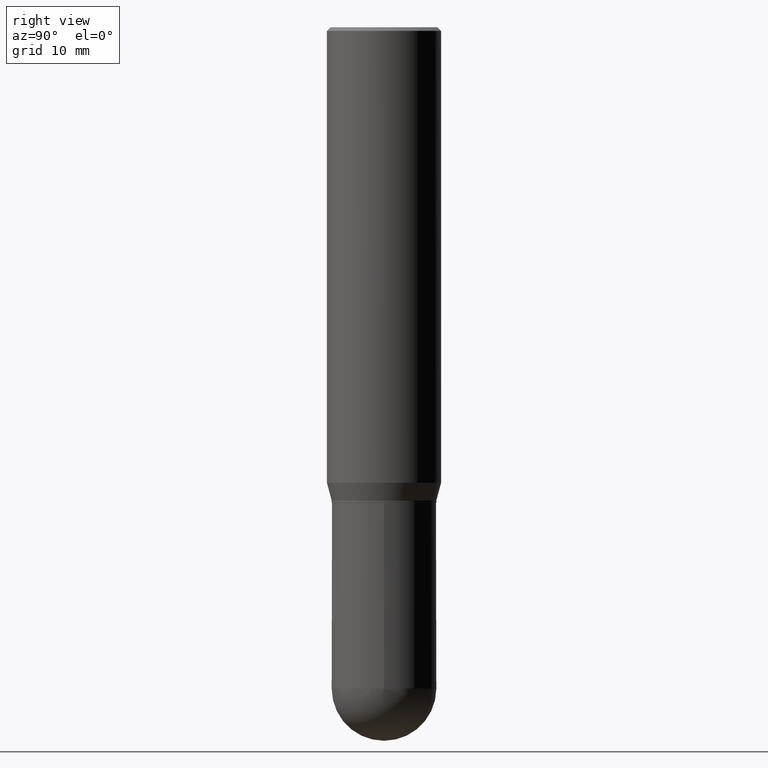
[diagram: clean part render]
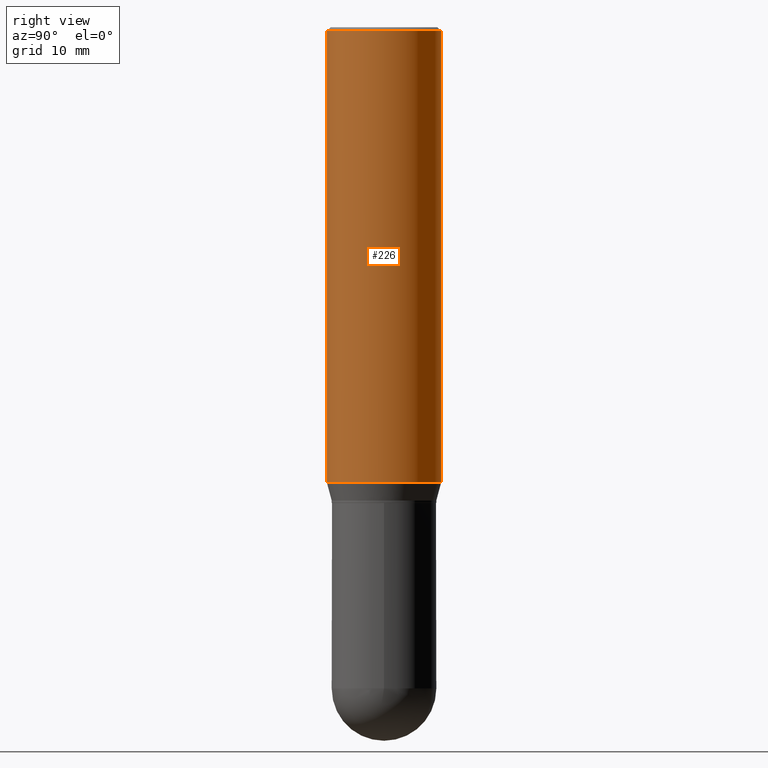
[diagram: same view with one face highlighted and labeled with its STEP entity id]
A machine part, right view. The second image highlights one B-rep face of the part: STEP entity #226.
In plain terms, the highlighted cylindrical surface (partial cylindrical patch) has radius 5.9995 mm, axis along (-0, 0, 1).
Its self-contained STEP definition (entity closure, byte-faithful):
#2 = VECTOR ( 'NONE', #206, 39.37007874015748143 ) ;
#7 = DIRECTION ( 'NONE',  ( -6.982962677686265922E-15, -1.000000000000000000, 3.491486196128866815E-15 ) ) ;
#9 = VERTEX_POINT ( 'NONE', #294 ) ;
#17 = CARTESIAN_POINT ( 'NONE',  ( 1.678301941865402543E-15, 0.2361999999999934430, -1.885165201631271215 ) ) ;
#48 = CARTESIAN_POINT ( 'NONE',  ( 1.678301941865356394E-15, 0.2361999999999999933, -8.246890395256382864E-16 ) ) ;
#57 = DIRECTION ( 'NONE',  ( -2.445465414360645907E-29, 3.491486196128866815E-15, 1.000000000000000000 ) ) ;
#64 = VERTEX_POINT ( 'NONE', #17 ) ;
#68 = LINE ( 'NONE', #355, #366 ) ;
#100 = VERTEX_POINT ( 'NONE', #354 ) ;
#117 = CARTESIAN_POINT ( 'NONE',  ( 3.668198121540934967E-31, -5.237229294193252052E-17, -0.01499999999999986067 ) ) ;
#125 = CYLINDRICAL_SURFACE ( 'NONE', #223, 0.2361999999999999933 ) ;
#134 = ORIENTED_EDGE ( 'NONE', *, *, #343, .F. ) ;
#137 = CARTESIAN_POINT ( 'NONE',  ( 0.000000000000000000, 0.000000000000000000, 0.000000000000000000 ) ) ;
#138 = DIRECTION ( 'NONE',  ( -6.982962677686265922E-15, -1.000000000000000000, 3.469747663417777397E-15 ) ) ;
#188 = EDGE_CURVE ( 'NONE', #64, #237, #440, .T. ) ;
#206 = DIRECTION ( 'NONE',  ( -2.445465414360645907E-29, 3.491486196128866815E-15, 1.000000000000000000 ) ) ;
#223 = AXIS2_PLACEMENT_3D ( 'NONE', #137, #254, #7 ) ;
#224 = DIRECTION ( 'NONE',  ( -2.445465414360645907E-29, 3.491486196128866815E-15, 1.000000000000000000 ) ) ;
#226 = ADVANCED_FACE ( 'NONE', ( #403 ), #125, .T. ) ;
#236 = EDGE_CURVE ( 'NONE', #100, #64, #280, .T. ) ;
#237 = VERTEX_POINT ( 'NONE', #260 ) ;
#254 = DIRECTION ( 'NONE',  ( -2.445465414360645907E-29, 3.491486196128866815E-15, 1.000000000000000000 ) ) ;
#257 = CARTESIAN_POINT ( 'NONE',  ( 4.610106300945484594E-29, -6.582028278918073028E-15, -1.885165201631270548 ) ) ;
#260 = CARTESIAN_POINT ( 'NONE',  ( 1.678301941865403134E-15, 0.2361999999999999655, -0.01500000000000068466 ) ) ;
#280 = CIRCLE ( 'NONE', #470, 0.2361999999999999933 ) ;
#294 = CARTESIAN_POINT ( 'NONE',  ( -1.649375784469495539E-15, -0.2362000000000000766, -0.01499999999999903667 ) ) ;
#303 = EDGE_LOOP ( 'NONE', ( #495, #386, #486, #134 ) ) ;
#323 = CIRCLE ( 'NONE', #407, 0.2361999999999999933 ) ;
#343 = EDGE_CURVE ( 'NONE', #100, #9, #68, .T. ) ;
#354 = CARTESIAN_POINT ( 'NONE',  ( -1.649375784469449785E-15, -0.2362000000000065436, -1.885165201631269660 ) ) ;
#355 = CARTESIAN_POINT ( 'NONE',  ( -1.649375784469495934E-15, -0.2361999999999999933, 8.246890395256382864E-16 ) ) ;
#366 = VECTOR ( 'NONE', #224, 39.37007874015748143 ) ;
#386 = ORIENTED_EDGE ( 'NONE', *, *, #188, .T. ) ;
#400 = DIRECTION ( 'NONE',  ( -2.445465414360645907E-29, 3.491486196128866815E-15, 1.000000000000000000 ) ) ;
#403 = FACE_OUTER_BOUND ( 'NONE', #303, .T. ) ;
#407 = AXIS2_PLACEMENT_3D ( 'NONE', #117, #400, #432 ) ;
#410 = EDGE_CURVE ( 'NONE', #9, #237, #323, .T. ) ;
#432 = DIRECTION ( 'NONE',  ( -6.982962677686265922E-15, -1.000000000000000000, 3.487819265831411744E-15 ) ) ;
#440 = LINE ( 'NONE', #48, #2 ) ;
#470 = AXIS2_PLACEMENT_3D ( 'NONE', #257, #57, #138 ) ;
#486 = ORIENTED_EDGE ( 'NONE', *, *, #410, .F. ) ;
#495 = ORIENTED_EDGE ( 'NONE', *, *, #236, .T. ) ;